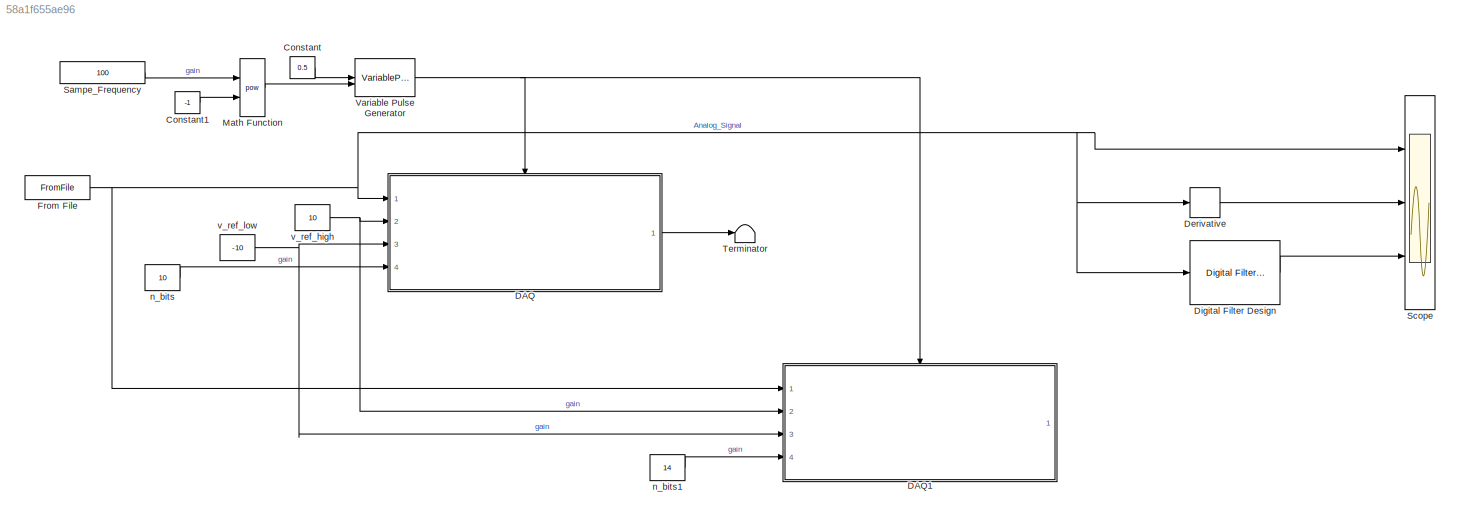
MODEL slx_58a1f655ae96
KIND model
CONFIG AbsTol = auto
CONFIG EnableMultiTasking = off
CONFIG FixedStep = 0.0001
CONFIG MaxStep = auto
CONFIG MinStep = auto
CONFIG RelTol = 1e-3
CONFIG SampleTimeConstraint = Unconstrained
CONFIG SolverName = FixedStepAuto
CONFIG StartTime = 0.0
CONFIG StopTime = 6
WORKSPACE source: mxarray member
WORKSPACE Analog_Amplitude = 1
WORKSPACE Analog_Frequncy = 1
WORKSPACE period = 10
BLOCK [Constant] Constant
  Value = 0.5
BLOCK [Constant] Constant1
  Value = -1
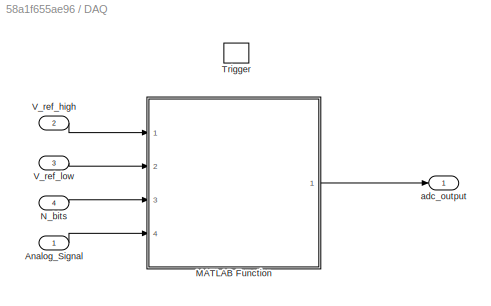
BLOCK [SubSystem] DAQ
  Commented = on
  Ports = [4, 1, 0, 1]
  RequestExecContextInheritance = off
BLOCK [Inport] DAQ/Analog_Signal
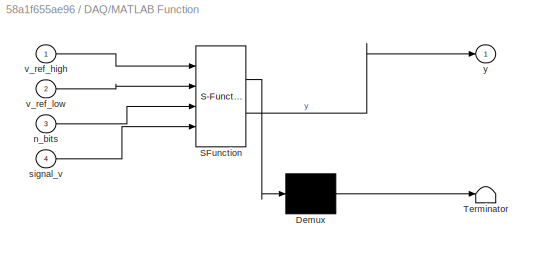
BLOCK [SubSystem] DAQ/MATLAB Function
  ErrorFcn = Stateflow.Translate.translate
  PermitHierarchicalResolution = ExplicitOnly
  Ports = [4, 1]
  RequestExecContextInheritance = off
  SFBlockType = MATLAB Function
  TreatAsAtomicUnit = on
BLOCK [Demux] DAQ/MATLAB Function/ Demux 
  Outputs = 1
  Ports = [1, 1]
BLOCK [S-Function] DAQ/MATLAB Function/ SFunction 
  EnableBusSupport = on
  FunctionName = sf_sfun
  PortCounts = [4 2]
  Ports = [4, 2]
  SFcnIsStateOwnerBlock = off
  SFunctionDeploymentMode = off
  Tag = Stateflow S-Function 2
BLOCK [Terminator] DAQ/MATLAB Function/ Terminator 
BLOCK [Inport] DAQ/MATLAB Function/n_bits
  Port = 3
BLOCK [Inport] DAQ/MATLAB Function/signal_v
  Port = 4
BLOCK [Inport] DAQ/MATLAB Function/v_ref_high
BLOCK [Inport] DAQ/MATLAB Function/v_ref_low
  Port = 2
BLOCK [Outport] DAQ/MATLAB Function/y
BLOCK [Inport] DAQ/N_bits
  Port = 4
BLOCK [TriggerPort] DAQ/Trigger
  PortDimensions = 1
  Ports = []
  StatesWhenEnabling = held
  VariantControl = Variant
BLOCK [Inport] DAQ/V_ref_high
  Port = 2
BLOCK [Inport] DAQ/V_ref_low
  Port = 3
BLOCK [Outport] DAQ/adc_output
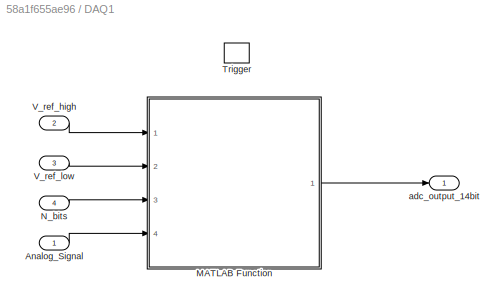
BLOCK [SubSystem] DAQ1
  Commented = on
  Ports = [4, 1, 0, 1]
  RequestExecContextInheritance = off
BLOCK [Inport] DAQ1/Analog_Signal
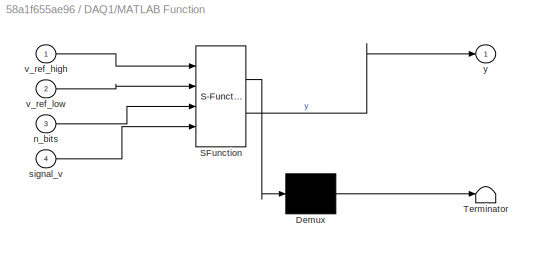
BLOCK [SubSystem] DAQ1/MATLAB Function
  ErrorFcn = Stateflow.Translate.translate
  PermitHierarchicalResolution = ExplicitOnly
  Ports = [4, 1]
  RequestExecContextInheritance = off
  SFBlockType = MATLAB Function
  TreatAsAtomicUnit = on
BLOCK [Demux] DAQ1/MATLAB Function/ Demux 
  Outputs = 1
  Ports = [1, 1]
BLOCK [S-Function] DAQ1/MATLAB Function/ SFunction 
  EnableBusSupport = on
  FunctionName = sf_sfun
  PortCounts = [4 2]
  Ports = [4, 2]
  SFcnIsStateOwnerBlock = off
  SFunctionDeploymentMode = off
  Tag = Stateflow S-Function 1
BLOCK [Terminator] DAQ1/MATLAB Function/ Terminator 
BLOCK [Inport] DAQ1/MATLAB Function/n_bits
  Port = 3
BLOCK [Inport] DAQ1/MATLAB Function/signal_v
  Port = 4
BLOCK [Inport] DAQ1/MATLAB Function/v_ref_high
BLOCK [Inport] DAQ1/MATLAB Function/v_ref_low
  Port = 2
BLOCK [Outport] DAQ1/MATLAB Function/y
BLOCK [Inport] DAQ1/N_bits
  Port = 4
BLOCK [TriggerPort] DAQ1/Trigger
  PortDimensions = 1
  Ports = []
  StatesWhenEnabling = held
  VariantControl = Variant
BLOCK [Inport] DAQ1/V_ref_high
  Port = 2
BLOCK [Inport] DAQ1/V_ref_low
  Port = 3
BLOCK [Outport] DAQ1/adc_output_14bit
BLOCK [Derivative] Derivative
BLOCK [Reference] Digital Filter Design  REF=dsparch4/Digital
Filter Design
  Ports = [1, 1]
  SourceBlock = dsparch4/Digital\nFilter Design
  SourceProductBaseCode = DS
  SourceType = Digital Filter Design
  UserDataPersistent = on
BLOCK [FromFile] From File
  ExtrapolationAfterLastDataPoint = Hold last value
  ExtrapolationBeforeFirstDataPoint = Hold first value
  FileName = Pressure.mat
  InterpolationWithinTimeRange = Zero order hold
BLOCK [Math] Math Function
  Operator = pow
  Ports = [2, 1]
BLOCK [Constant] Sampe_Frequency
  Value = 100
BLOCK [Scope] Scope
  Floating = off
  NumInputPorts = 3
  Ports = [3]
  ScopeSpecificationString = Simulink.scopes.TimeScopeBlockCfg('CurrentConfiguration', extmgr.ConfigurationSet(extmgr.Configuration('Core','General UI',true),extmgr.Configuration('Core','Source UI',true),extmgr.Configuration('Sources','WiredSimulink',true),extmgr.Configuration('Visuals','Time Domain',true,'InputProcessing','FrameProcessing','SerializedDisplays',{struct('MinYLimReal','-8.63903','MaxYLimReal','-0.90168','YLabel...<+2773ch>
BLOCK [Terminator] Terminator
BLOCK [VariablePulseGenerator] Variable Pulse Generator
  RunAtFixedTimeIntervals = on
  SampleTime = 0.0001
BLOCK [Constant] n_bits
  Value = 10
BLOCK [Constant] n_bits1
  Value = 14
BLOCK [Constant] v_ref_high
  Value = 10
BLOCK [Constant] v_ref_low
  Value = -10
LINE Constant1:1 -> Math Function:2
LINE Constant:1 -> Variable Pulse Generator:1
LINE DAQ/Analog_Signal:1 -> DAQ/MATLAB Function:4
LINE DAQ/MATLAB Function:1 -> DAQ/adc_output:1
LINE DAQ/N_bits:1 -> DAQ/MATLAB Function:3
LINE DAQ/V_ref_high:1 -> DAQ/MATLAB Function:1
LINE DAQ/V_ref_low:1 -> DAQ/MATLAB Function:2
LINE DAQ1/Analog_Signal:1 -> DAQ1/MATLAB Function:4
LINE DAQ1/MATLAB Function:1 -> DAQ1/adc_output_14bit:1
LINE DAQ1/N_bits:1 -> DAQ1/MATLAB Function:3
LINE DAQ1/V_ref_high:1 -> DAQ1/MATLAB Function:1
LINE DAQ1/V_ref_low:1 -> DAQ1/MATLAB Function:2
LINE DAQ:1 -> Terminator:1
LINE Derivative:1 -> Scope:2
LINE Digital Filter Design:1 -> Scope:3
NET From File:1 -> DAQ1:1, DAQ:1, Derivative:1, Digital Filter Design:1, Scope:1
LINE Math Function:1 -> Variable Pulse Generator:2
LINE Sampe_Frequency:1 -> Math Function:1
NET Variable Pulse Generator:1 -> DAQ1:trigger, DAQ:trigger
LINE n_bits1:1 -> DAQ1:4
LINE n_bits:1 -> DAQ:4
NET v_ref_high:1 -> DAQ1:2, DAQ:2
NET v_ref_low:1 -> DAQ1:3, DAQ:3
note: NET lines group one-source signal fan-out (src -> all destinations, sorted); 1:1 wires keep LINE
CHART DAQ1/MATLAB Function states=1 transitions=1
  STATE_LABEL 'eML_blk_kernel()'
  STATE_LABEL 'SCRIPT:\nfunction y = daq(v_ref_high, v_ref_low, n_bits, signal_v)\nv_ref_high = v_ref_high + abs(v_ref_low);\nresolution = 2^n_bits;\ndelta = v_ref_high / resolution;\nbinary = zeros(resolution, 1);\nsignal_v = signal_v + abs(v_ref_low);\nfor i=1:resolution\n    comparator = v_ref_high - (i - 1) * delta;\n    bit = signal_v >= comparator;\n    binary(i) = bit * comparator;\n    if bit\n        signal_v = sig...<+65ch>'
CHART DAQ/MATLAB Function states=1 transitions=1
  STATE_LABEL 'eML_blk_kernel()'
  STATE_LABEL 'SCRIPT:\nfunction y = daq(v_ref_high, v_ref_low, n_bits, signal_v)\nv_ref_high = v_ref_high + abs(v_ref_low);\nresolution = 2^n_bits;\ndelta = v_ref_high / resolution;\nbinary = zeros(resolution, 1);\nsignal_v = signal_v + abs(v_ref_low);\nfor i=1:resolution\n    comparator = v_ref_high - (i - 1) * delta;\n    bit = signal_v >= comparator;\n    binary(i) = bit * comparator;\n    if bit\n        signal_v = sig...<+65ch>'
CHART  states=0 transitions=0
CHART  states=0 transitions=0
